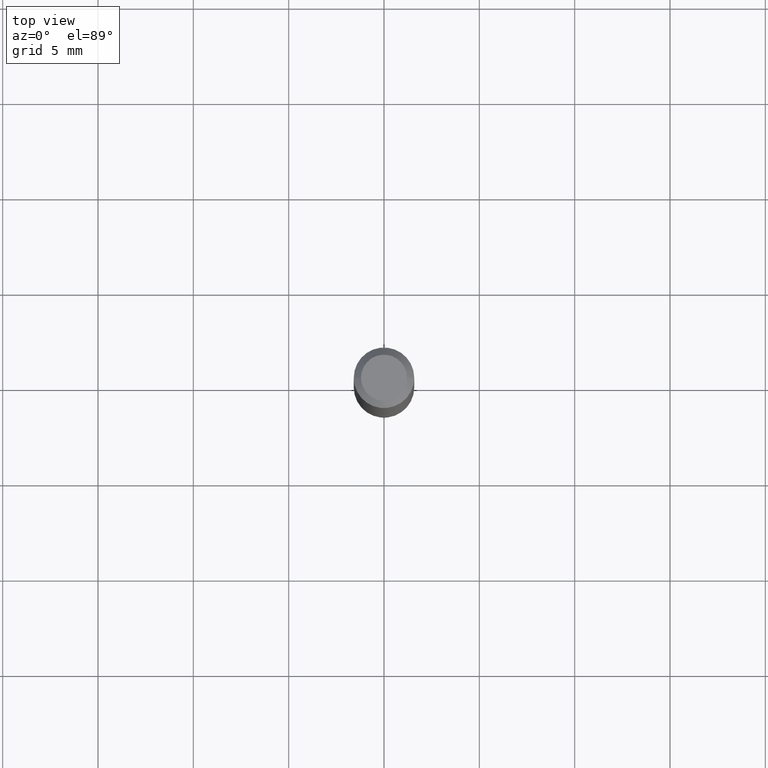
[diagram: clean part render]
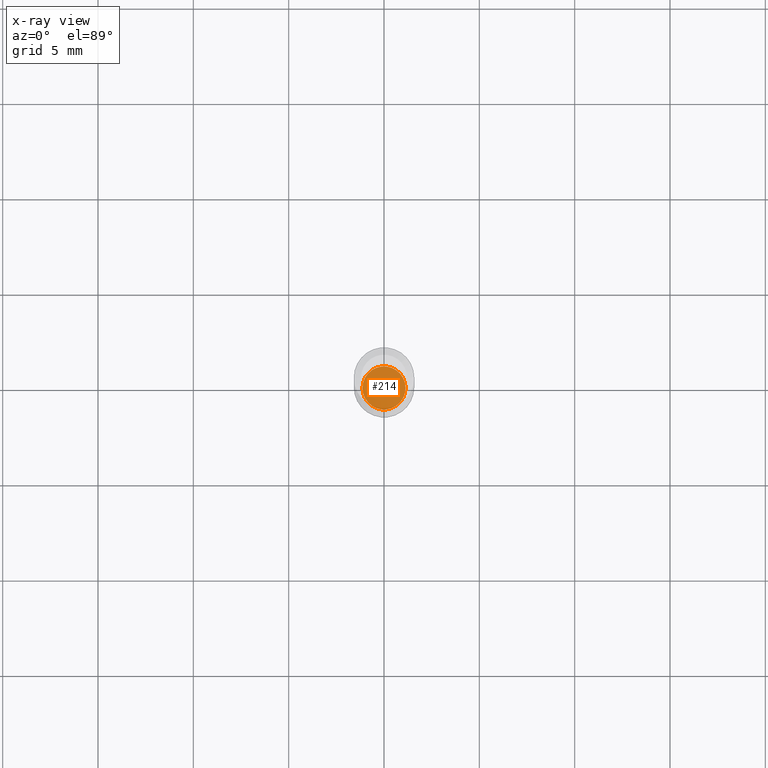
[diagram: x-ray — body ghosted, one internal face saturated and labeled with its STEP entity id]
A machine part, top view, then the same camera in x-ray: the body is ghosted and one INTERNAL B-rep face — a face not visible from any outside direction — is saturated and labeled: STEP entity #214.
In plain terms, the highlighted planar face has unit normal (-0, 0, 1).
Its self-contained STEP definition (entity closure, byte-faithful):
#28 = PLANE ( 'NONE',  #423 ) ;
#46 = ORIENTED_EDGE ( 'NONE', *, *, #408, .F. ) ;
#70 = DIRECTION ( 'NONE',  ( -2.438088387897960049E-29, 3.491481338843145188E-15, 1.000000000000000000 ) ) ;
#100 = DIRECTION ( 'NONE',  ( 1.000000000000000000, -6.982962677686276177E-15, 0.000000000000000000 ) ) ;
#137 = EDGE_CURVE ( 'NONE', #170, #302, #412, .T. ) ;
#143 = FACE_OUTER_BOUND ( 'NONE', #195, .T. ) ;
#151 = CARTESIAN_POINT ( 'NONE',  ( 3.007926631607718216E-29, -4.294522046777069173E-15, -1.230000000000000204 ) ) ;
#170 = VERTEX_POINT ( 'NONE', #501 ) ;
#187 = ORIENTED_EDGE ( 'NONE', *, *, #137, .F. ) ;
#195 = EDGE_LOOP ( 'NONE', ( #46, #187 ) ) ;
#213 = CARTESIAN_POINT ( 'NONE',  ( 3.007926631607718216E-29, -4.294522046777069173E-15, -1.230000000000000204 ) ) ;
#214 = ADVANCED_FACE ( 'NONE', ( #143 ), #28, .F. ) ;
#218 = CARTESIAN_POINT ( 'NONE',  ( 3.007926631607718216E-29, -4.294522046777069173E-15, -1.230000000000000204 ) ) ;
#261 = DIRECTION ( 'NONE',  ( -2.445468806185136597E-29, 3.491481338843145583E-15, 1.000000000000000000 ) ) ;
#267 = DIRECTION ( 'NONE',  ( 1.000000000000000000, -6.982962677686276177E-15, 0.000000000000000000 ) ) ;
#302 = VERTEX_POINT ( 'NONE', #347 ) ;
#347 = CARTESIAN_POINT ( 'NONE',  ( 0.04450000000000001177, -4.605263885934108641E-15, -1.230000000000000204 ) ) ;
#375 = AXIS2_PLACEMENT_3D ( 'NONE', #151, #387, #267 ) ;
#386 = AXIS2_PLACEMENT_3D ( 'NONE', #218, #261, #100 ) ;
#387 = DIRECTION ( 'NONE',  ( -2.445468806185136597E-29, 3.491481338843145583E-15, 1.000000000000000000 ) ) ;
#408 = EDGE_CURVE ( 'NONE', #302, #170, #450, .T. ) ;
#412 = CIRCLE ( 'NONE', #386, 0.04450000000000001177 ) ;
#416 = DIRECTION ( 'NONE',  ( 1.000000000000000000, -6.982962677686265922E-15, 4.876176775795935793E-29 ) ) ;
#423 = AXIS2_PLACEMENT_3D ( 'NONE', #213, #70, #416 ) ;
#450 = CIRCLE ( 'NONE', #375, 0.04450000000000001177 ) ;
#501 = CARTESIAN_POINT ( 'NONE',  ( -0.04450000000000001177, -3.975681302189713503E-15, -1.230000000000000204 ) ) ;